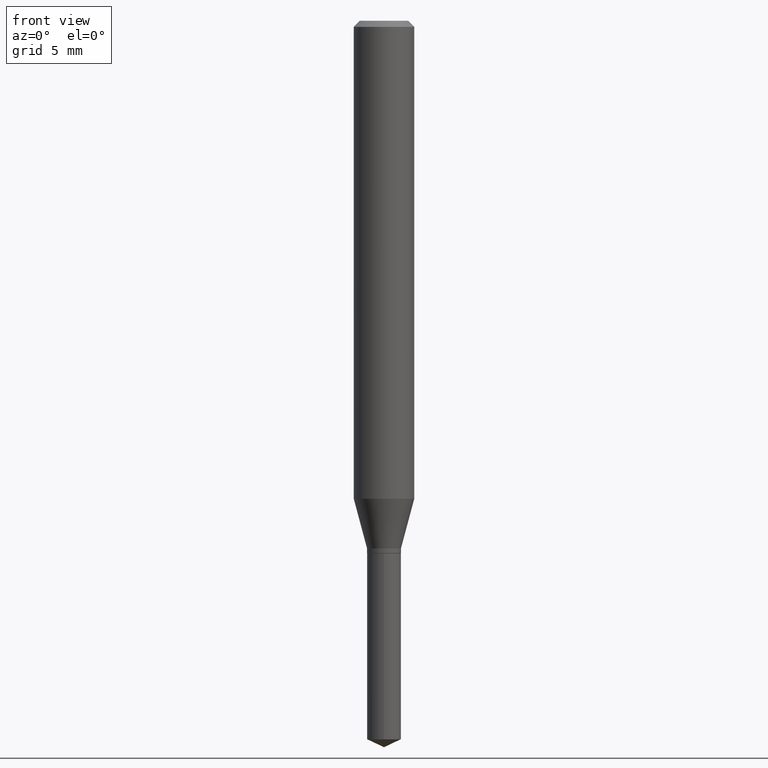
[diagram: clean part render]
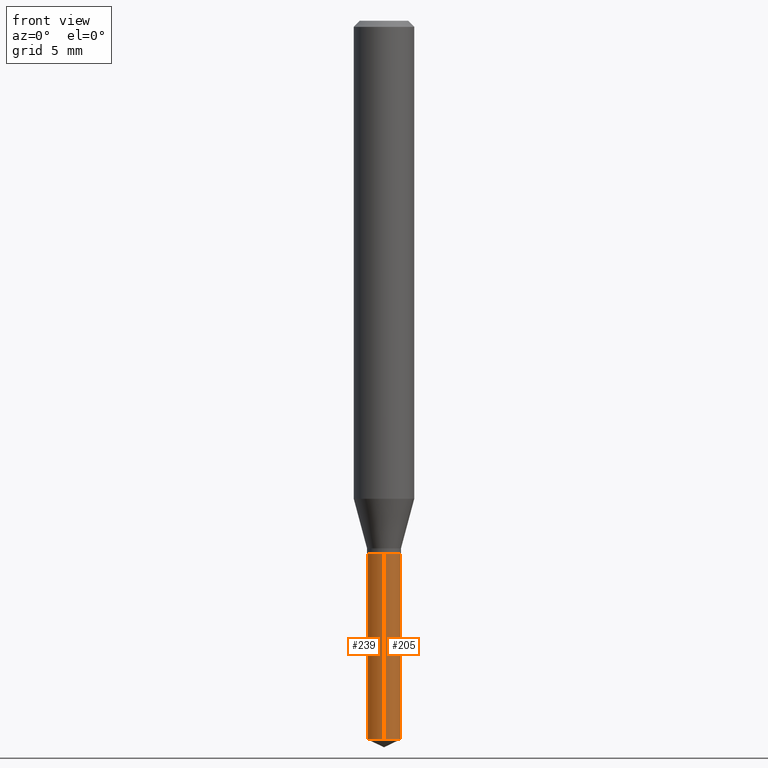
[diagram: same view with one multi-face feature highlighted, each face labeled with its STEP entity id]
A machine part, front view. The highlighted faces form ONE feature: a constant-radius fillet chain: 2 tangent blend faces with common blend radius 0.889 mm. The faces share edges in the B-rep.
Their STEP definitions:
[1] entity #205 (Cylinder):
#2 = VERTEX_POINT ( 'NONE', #422 ) ;
#21 = CARTESIAN_POINT ( 'NONE',  ( -2.444036937189830867E-16, -0.03500000000000518668, -1.483679231964575296 ) ) ;
#22 = AXIS2_PLACEMENT_3D ( 'NONE', #61, #101, #206 ) ;
#23 = DIRECTION ( 'NONE',  ( -2.445399690415121810E-29, 3.491580316559632610E-15, 1.000000000000000000 ) ) ;
#35 = ORIENTED_EDGE ( 'NONE', *, *, #486, .T. ) ;
#44 = CARTESIAN_POINT ( 'NONE',  ( -2.444036937189924051E-16, -0.03500000000000384054, -1.099999999999999867 ) ) ;
#45 = CIRCLE ( 'NONE', #313, 0.03500000000000000333 ) ;
#61 = CARTESIAN_POINT ( 'NONE',  ( 2.690015686803650369E-29, -3.840629472727460101E-15, -1.100000000000000089 ) ) ;
#81 = CYLINDRICAL_SURFACE ( 'NONE', #430, 0.03500000000000000333 ) ;
#101 = DIRECTION ( 'NONE',  ( -2.445399690415121530E-29, 3.491580316559632610E-15, 1.000000000000000000 ) ) ;
#125 = DIRECTION ( 'NONE',  ( -2.445399690415121810E-29, 3.491580316559632610E-15, 1.000000000000000000 ) ) ;
#148 = VERTEX_POINT ( 'NONE', #330 ) ;
#152 = CARTESIAN_POINT ( 'NONE',  ( 3.628264761868534477E-29, -5.180276326927687830E-15, -1.483679231964575296 ) ) ;
#176 = ORIENTED_EDGE ( 'NONE', *, *, #464, .F. ) ;
#205 = ADVANCED_FACE ( 'NONE', ( #420 ), #81, .T. ) ;
#206 = DIRECTION ( 'NONE',  ( -6.982962677686265922E-15, -1.000000000000000000, 3.902639990948947455E-15 ) ) ;
#216 = DIRECTION ( 'NONE',  ( -2.445399690415121530E-29, 3.491580316559632610E-15, 1.000000000000000000 ) ) ;
#220 = EDGE_LOOP ( 'NONE', ( #35, #413, #406, #176 ) ) ;
#231 = CARTESIAN_POINT ( 'NONE',  ( 2.690015686803650369E-29, -3.840629472727460101E-15, -1.100000000000000089 ) ) ;
#236 = LINE ( 'NONE', #44, #281 ) ;
#245 = LINE ( 'NONE', #357, #400 ) ;
#255 = DIRECTION ( 'NONE',  ( -6.982962677686265922E-15, -1.000000000000000000, 3.902639990948947455E-15 ) ) ;
#281 = VECTOR ( 'NONE', #125, 39.37007874015748143 ) ;
#305 = EDGE_CURVE ( 'NONE', #148, #2, #424, .T. ) ;
#313 = AXIS2_PLACEMENT_3D ( 'NONE', #152, #216, #324 ) ;
#316 = EDGE_CURVE ( 'NONE', #394, #2, #245, .T. ) ;
#324 = DIRECTION ( 'NONE',  ( -6.982962677686265922E-15, -1.000000000000000000, 0.000000000000000000 ) ) ;
#327 = VERTEX_POINT ( 'NONE', #21 ) ;
#330 = CARTESIAN_POINT ( 'NONE',  ( -2.444036937189924051E-16, -0.03500000000000384054, -1.099999999999999867 ) ) ;
#357 = CARTESIAN_POINT ( 'NONE',  ( 2.486899575160619593E-16, 0.03499999999999615918, -1.100000000000000089 ) ) ;
#394 = VERTEX_POINT ( 'NONE', #404 ) ;
#400 = VECTOR ( 'NONE', #23, 39.37007874015748143 ) ;
#404 = CARTESIAN_POINT ( 'NONE',  ( 2.486899575160713763E-16, 0.03499999999999482692, -1.483679231964575296 ) ) ;
#406 = ORIENTED_EDGE ( 'NONE', *, *, #305, .F. ) ;
#413 = ORIENTED_EDGE ( 'NONE', *, *, #316, .T. ) ;
#420 = FACE_OUTER_BOUND ( 'NONE', #220, .T. ) ;
#422 = CARTESIAN_POINT ( 'NONE',  ( 2.486899575160713763E-16, 0.03499999999999615918, -1.100000000000000089 ) ) ;
#424 = CIRCLE ( 'NONE', #22, 0.03500000000000000333 ) ;
#430 = AXIS2_PLACEMENT_3D ( 'NONE', #231, #460, #255 ) ;
#460 = DIRECTION ( 'NONE',  ( -2.445399690415121530E-29, 3.491580316559632610E-15, 1.000000000000000000 ) ) ;
#464 = EDGE_CURVE ( 'NONE', #327, #148, #236, .T. ) ;
#486 = EDGE_CURVE ( 'NONE', #327, #394, #45, .T. ) ;
[2] entity #239 (Cylinder):
#2 = VERTEX_POINT ( 'NONE', #422 ) ;
#5 = DIRECTION ( 'NONE',  ( -2.445399690415121530E-29, 3.491580316559632610E-15, 1.000000000000000000 ) ) ;
#21 = CARTESIAN_POINT ( 'NONE',  ( -2.444036937189830867E-16, -0.03500000000000518668, -1.483679231964575296 ) ) ;
#23 = DIRECTION ( 'NONE',  ( -2.445399690415121810E-29, 3.491580316559632610E-15, 1.000000000000000000 ) ) ;
#44 = CARTESIAN_POINT ( 'NONE',  ( -2.444036937189924051E-16, -0.03500000000000384054, -1.099999999999999867 ) ) ;
#53 = AXIS2_PLACEMENT_3D ( 'NONE', #426, #92, #347 ) ;
#74 = ORIENTED_EDGE ( 'NONE', *, *, #464, .T. ) ;
#91 = CIRCLE ( 'NONE', #99, 0.03500000000000000333 ) ;
#92 = DIRECTION ( 'NONE',  ( -2.445399690415121530E-29, 3.491580316559632610E-15, 1.000000000000000000 ) ) ;
#99 = AXIS2_PLACEMENT_3D ( 'NONE', #223, #183, #382 ) ;
#105 = EDGE_CURVE ( 'NONE', #394, #327, #91, .T. ) ;
#119 = CARTESIAN_POINT ( 'NONE',  ( 2.690015686803650369E-29, -3.840629472727460101E-15, -1.100000000000000089 ) ) ;
#125 = DIRECTION ( 'NONE',  ( -2.445399690415121810E-29, 3.491580316559632610E-15, 1.000000000000000000 ) ) ;
#127 = ORIENTED_EDGE ( 'NONE', *, *, #441, .F. ) ;
#134 = AXIS2_PLACEMENT_3D ( 'NONE', #119, #5, #418 ) ;
#148 = VERTEX_POINT ( 'NONE', #330 ) ;
#183 = DIRECTION ( 'NONE',  ( -2.445399690415121530E-29, 3.491580316559632610E-15, 1.000000000000000000 ) ) ;
#187 = ORIENTED_EDGE ( 'NONE', *, *, #105, .T. ) ;
#223 = CARTESIAN_POINT ( 'NONE',  ( 3.628264761868534477E-29, -5.180276326927687830E-15, -1.483679231964575296 ) ) ;
#236 = LINE ( 'NONE', #44, #281 ) ;
#239 = ADVANCED_FACE ( 'NONE', ( #437 ), #275, .T. ) ;
#245 = LINE ( 'NONE', #357, #400 ) ;
#251 = ORIENTED_EDGE ( 'NONE', *, *, #316, .F. ) ;
#273 = CIRCLE ( 'NONE', #134, 0.03500000000000000333 ) ;
#275 = CYLINDRICAL_SURFACE ( 'NONE', #53, 0.03500000000000000333 ) ;
#277 = EDGE_LOOP ( 'NONE', ( #251, #187, #74, #127 ) ) ;
#281 = VECTOR ( 'NONE', #125, 39.37007874015748143 ) ;
#316 = EDGE_CURVE ( 'NONE', #394, #2, #245, .T. ) ;
#327 = VERTEX_POINT ( 'NONE', #21 ) ;
#330 = CARTESIAN_POINT ( 'NONE',  ( -2.444036937189924051E-16, -0.03500000000000384054, -1.099999999999999867 ) ) ;
#347 = DIRECTION ( 'NONE',  ( -6.982962677686265922E-15, -1.000000000000000000, 3.902639990948947455E-15 ) ) ;
#357 = CARTESIAN_POINT ( 'NONE',  ( 2.486899575160619593E-16, 0.03499999999999615918, -1.100000000000000089 ) ) ;
#382 = DIRECTION ( 'NONE',  ( -6.982962677686265922E-15, -1.000000000000000000, 0.000000000000000000 ) ) ;
#394 = VERTEX_POINT ( 'NONE', #404 ) ;
#400 = VECTOR ( 'NONE', #23, 39.37007874015748143 ) ;
#404 = CARTESIAN_POINT ( 'NONE',  ( 2.486899575160713763E-16, 0.03499999999999482692, -1.483679231964575296 ) ) ;
#418 = DIRECTION ( 'NONE',  ( -6.982962677686265922E-15, -1.000000000000000000, 3.902639990948947455E-15 ) ) ;
#422 = CARTESIAN_POINT ( 'NONE',  ( 2.486899575160713763E-16, 0.03499999999999615918, -1.100000000000000089 ) ) ;
#426 = CARTESIAN_POINT ( 'NONE',  ( 2.690015686803650369E-29, -3.840629472727460101E-15, -1.100000000000000089 ) ) ;
#437 = FACE_OUTER_BOUND ( 'NONE', #277, .T. ) ;
#441 = EDGE_CURVE ( 'NONE', #2, #148, #273, .T. ) ;
#464 = EDGE_CURVE ( 'NONE', #327, #148, #236, .T. ) ;